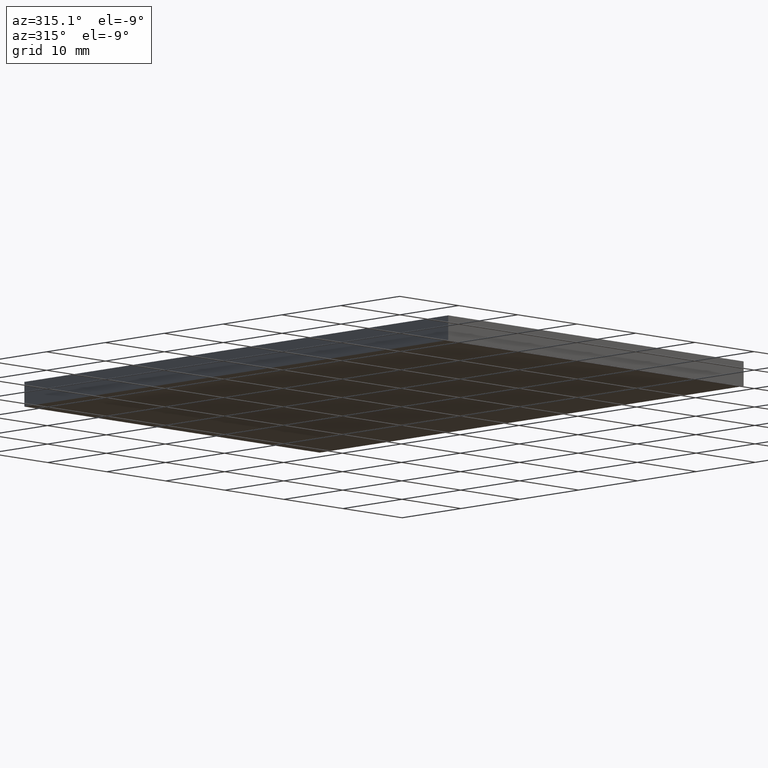
[diagram: clean part render]
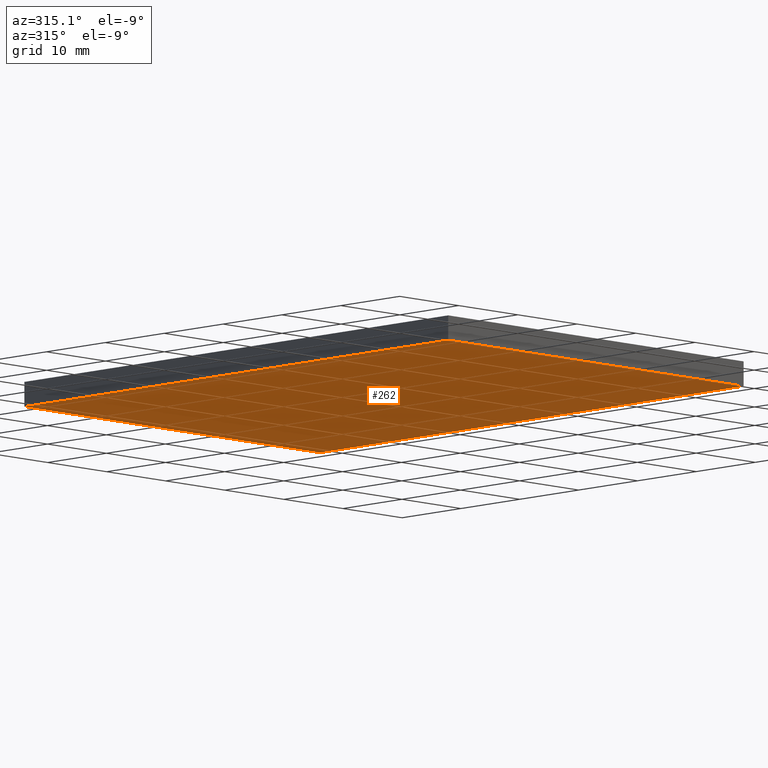
[diagram: same view with one face highlighted and labeled with its STEP entity id]
A machine part, auxiliary view. The second image highlights one B-rep face of the part: STEP entity #262.
In plain terms, the highlighted planar face has unit normal (-0, 0, 1).
Its self-contained STEP definition (entity closure, byte-faithful):
#24 = AXIS2_PLACEMENT_3D ( 'NONE', #274, #220, #102 ) ;
#37 = VECTOR ( 'NONE', #152, 1000.000000000000000 ) ;
#39 = LINE ( 'NONE', #73, #37 ) ;
#40 = EDGE_CURVE ( 'NONE', #138, #247, #291, .T. ) ;
#48 = VECTOR ( 'NONE', #213, 1000.000000000000000 ) ;
#49 = ORIENTED_EDGE ( 'NONE', *, *, #127, .F. ) ;
#59 = LINE ( 'NONE', #287, #106 ) ;
#72 = ORIENTED_EDGE ( 'NONE', *, *, #103, .F. ) ;
#73 = CARTESIAN_POINT ( 'NONE',  ( -6.351626016260162500, 7.520325203252024700, 0.0000000000000000000 ) ) ;
#95 = CARTESIAN_POINT ( 'NONE',  ( -6.351626016260153700, -64.47967479674797200, 0.0000000000000000000 ) ) ;
#96 = DIRECTION ( 'NONE',  ( 1.204669080539449300E-016, -1.000000000000000000, 0.0000000000000000000 ) ) ;
#102 = DIRECTION ( 'NONE',  ( 1.000000000000000000, 0.0000000000000000000, 0.0000000000000000000 ) ) ;
#103 = EDGE_CURVE ( 'NONE', #267, #138, #39, .T. ) ;
#106 = VECTOR ( 'NONE', #115, 1000.000000000000000 ) ;
#115 = DIRECTION ( 'NONE',  ( 1.000000000000000000, 0.0000000000000000000, 0.0000000000000000000 ) ) ;
#123 = PLANE ( 'NONE',  #24 ) ;
#127 = EDGE_CURVE ( 'NONE', #288, #267, #282, .T. ) ;
#129 = CARTESIAN_POINT ( 'NONE',  ( 43.64837398373985200, -64.47967479674797200, 0.0000000000000000000 ) ) ;
#138 = VERTEX_POINT ( 'NONE', #259 ) ;
#152 = DIRECTION ( 'NONE',  ( -1.000000000000000000, -0.0000000000000000000, -0.0000000000000000000 ) ) ;
#177 = EDGE_CURVE ( 'NONE', #247, #288, #59, .T. ) ;
#194 = CARTESIAN_POINT ( 'NONE',  ( 43.64837398373984500, 7.520325203252024700, 0.0000000000000000000 ) ) ;
#205 = ORIENTED_EDGE ( 'NONE', *, *, #40, .F. ) ;
#213 = DIRECTION ( 'NONE',  ( -9.637352644315595200E-017, 1.000000000000000000, -0.0000000000000000000 ) ) ;
#220 = DIRECTION ( 'NONE',  ( -0.0000000000000000000, 0.0000000000000000000, 1.000000000000000000 ) ) ;
#231 = EDGE_LOOP ( 'NONE', ( #205, #72, #49, #241 ) ) ;
#238 = CARTESIAN_POINT ( 'NONE',  ( -6.351626016260162500, 7.520325203252024700, 0.0000000000000000000 ) ) ;
#241 = ORIENTED_EDGE ( 'NONE', *, *, #177, .F. ) ;
#245 = CARTESIAN_POINT ( 'NONE',  ( 43.64837398373984500, 7.520325203252024700, 0.0000000000000000000 ) ) ;
#247 = VERTEX_POINT ( 'NONE', #95 ) ;
#248 = FACE_OUTER_BOUND ( 'NONE', #231, .T. ) ;
#253 = VECTOR ( 'NONE', #96, 1000.000000000000000 ) ;
#259 = CARTESIAN_POINT ( 'NONE',  ( -6.351626016260162500, 7.520325203252024700, 0.0000000000000000000 ) ) ;
#262 = ADVANCED_FACE ( 'NONE', ( #248 ), #123, .F. ) ;
#267 = VERTEX_POINT ( 'NONE', #245 ) ;
#274 = CARTESIAN_POINT ( 'NONE',  ( 0.0000000000000000000, 0.0000000000000000000, 0.0000000000000000000 ) ) ;
#282 = LINE ( 'NONE', #194, #48 ) ;
#287 = CARTESIAN_POINT ( 'NONE',  ( -6.351626016260153700, -64.47967479674797200, 0.0000000000000000000 ) ) ;
#288 = VERTEX_POINT ( 'NONE', #129 ) ;
#291 = LINE ( 'NONE', #238, #253 ) ;